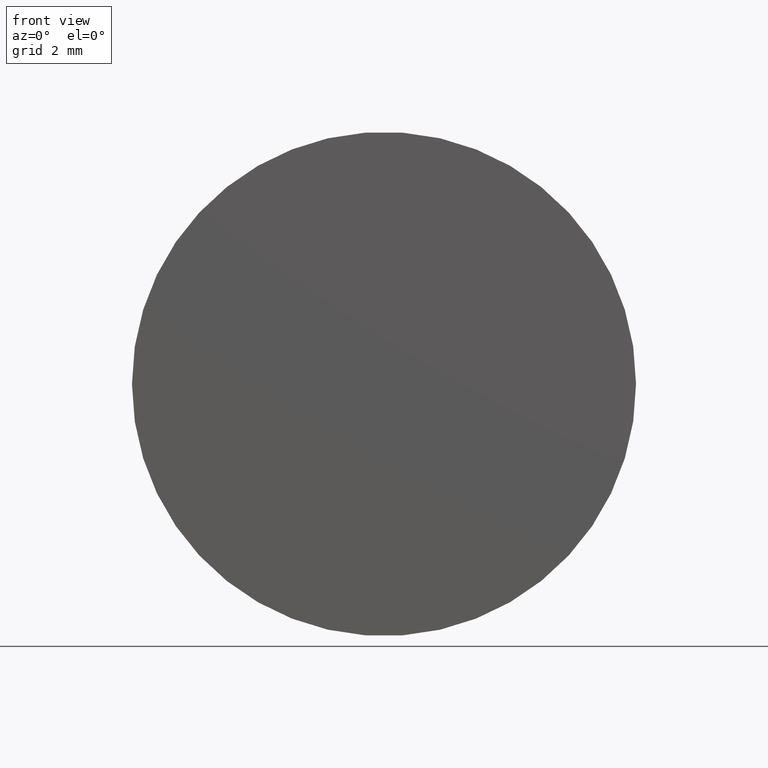
[diagram: clean part render]
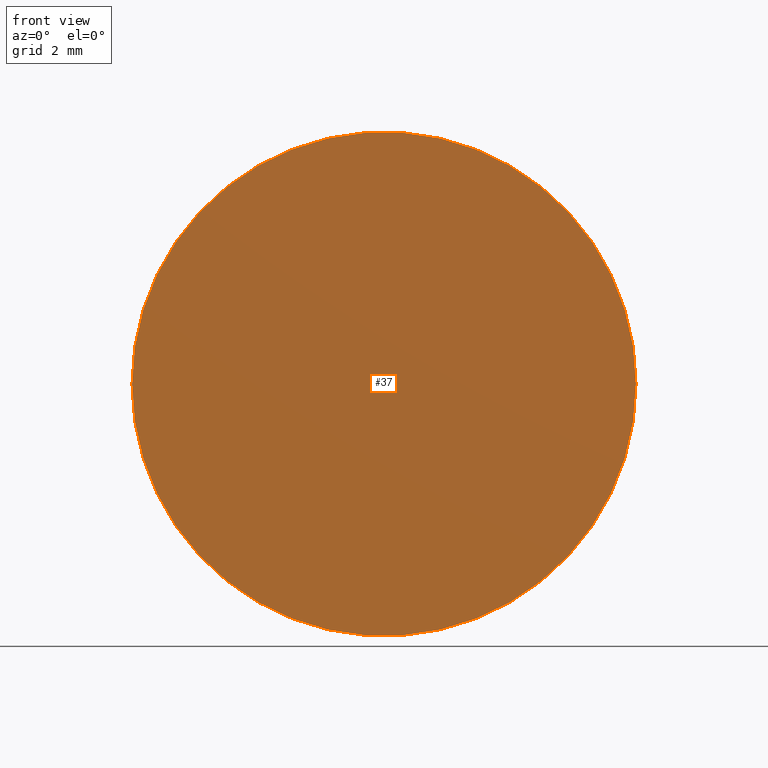
[diagram: same view with one face highlighted and labeled with its STEP entity id]
A machine part, front view. The second image highlights one B-rep face of the part: STEP entity #37.
In plain terms, the highlighted planar face has unit normal (0, 1, 0).
Its self-contained STEP definition (entity closure, byte-faithful):
#18=FACE_OUTER_BOUND('',#21,.T.);
#21=EDGE_LOOP('',(#31));
#25=CIRCLE('',#44,6.);
#27=VERTEX_POINT('',#63);
#29=EDGE_CURVE('',#27,#27,#25,.T.);
#31=ORIENTED_EDGE('',*,*,#29,.F.);
#35=PLANE('',#43);
#37=ADVANCED_FACE('',(#18),#35,.F.);
#43=AXIS2_PLACEMENT_3D('',#62,#52,#53);
#44=AXIS2_PLACEMENT_3D('',#64,#54,#55);
#52=DIRECTION('center_axis',(0.,1.,0.));
#53=DIRECTION('ref_axis',(0.,0.,1.));
#54=DIRECTION('center_axis',(0.,1.,0.));
#55=DIRECTION('ref_axis',(1.,0.,0.));
#62=CARTESIAN_POINT('Origin',(0.,0.,0.));
#63=CARTESIAN_POINT('',(6.,0.,0.));
#64=CARTESIAN_POINT('Origin',(0.,0.,0.));